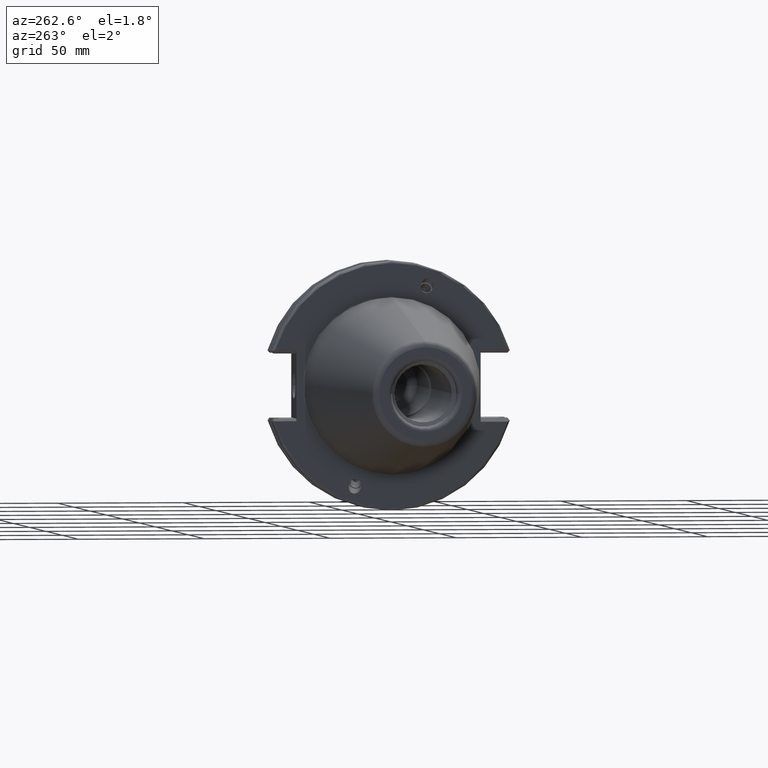
[diagram: clean part render]
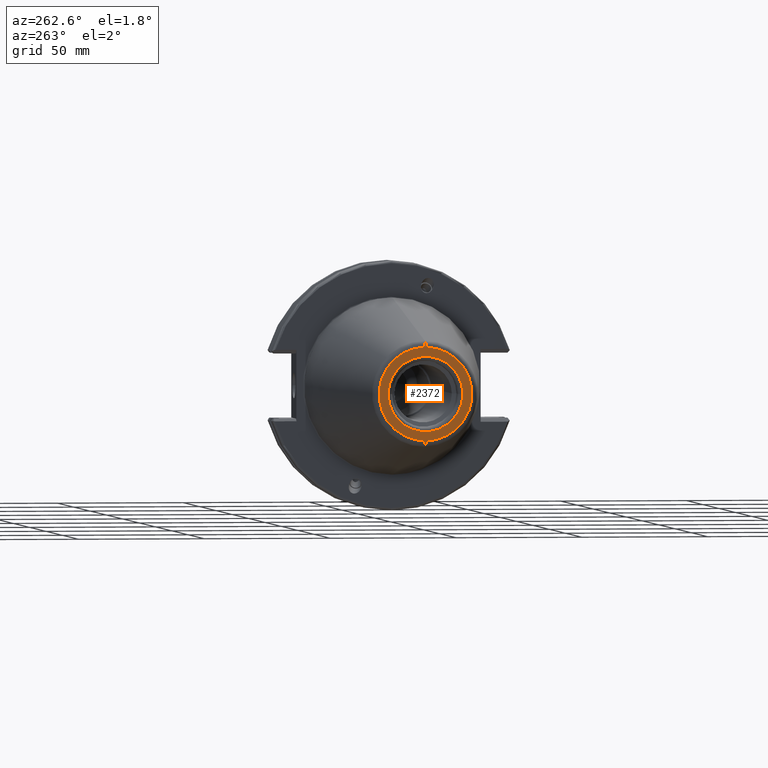
[diagram: same view with one face highlighted and labeled with its STEP entity id]
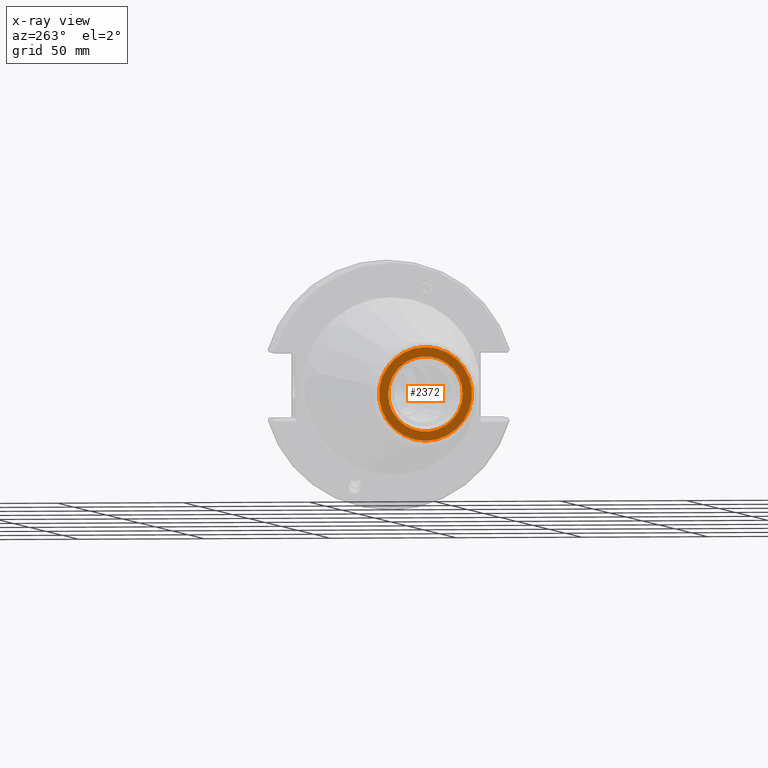
[diagram: x-ray of the same camera — body ghosted, the highlighted face saturated]
A machine part, auxiliary view. The second image highlights one B-rep face of the part: STEP entity #2372.
The next image is the same camera in x-ray: the body ghosted, the highlighted face saturated — about 0% of this face is hidden behind the body in this view.
In plain terms, the highlighted planar face has unit normal (1, 0, 0).
Its self-contained STEP definition (entity closure, byte-faithful):
#81=CARTESIAN_POINT('',(-4.E0,0.E0,0.E0));
#82=DIRECTION('',(-1.E0,0.E0,0.E0));
#83=DIRECTION('',(0.E0,0.E0,-1.E0));
#84=AXIS2_PLACEMENT_3D('',#81,#82,#83);
#86=CARTESIAN_POINT('',(-4.E0,0.E0,0.E0));
#87=DIRECTION('',(-1.E0,0.E0,0.E0));
#88=DIRECTION('',(0.E0,0.E0,1.E0));
#89=AXIS2_PLACEMENT_3D('',#86,#87,#88);
#91=CARTESIAN_POINT('',(-4.E0,0.E0,0.E0));
#92=DIRECTION('',(1.E0,0.E0,0.E0));
#93=DIRECTION('',(0.E0,1.E0,-7.607143345760E-8));
#94=AXIS2_PLACEMENT_3D('',#91,#92,#93);
#96=CARTESIAN_POINT('',(-4.E0,0.E0,0.E0));
#97=DIRECTION('',(1.E0,0.E0,0.E0));
#98=DIRECTION('',(0.E0,-1.E0,7.607143271544E-8));
#99=AXIS2_PLACEMENT_3D('',#96,#97,#98);
#1948=CARTESIAN_POINT('',(-4.E0,5.836909766759E-1,-4.440220929201E-8));
#1949=CARTESIAN_POINT('',(-4.E0,-5.836909766759E-1,4.440220962270E-8));
#1950=VERTEX_POINT('',#1948);
#1951=VERTEX_POINT('',#1949);
#1956=CARTESIAN_POINT('',(-4.E0,0.E0,-7.272769429014E-1));
#1957=CARTESIAN_POINT('',(-4.E0,0.E0,7.272769429014E-1));
#1958=VERTEX_POINT('',#1956);
#1959=VERTEX_POINT('',#1957);
#2356=CARTESIAN_POINT('',(-4.E0,0.E0,0.E0));
#2357=DIRECTION('',(1.E0,0.E0,0.E0));
#2358=DIRECTION('',(0.E0,0.E0,1.E0));
#2359=AXIS2_PLACEMENT_3D('',#2356,#2357,#2358);
#2360=PLANE('',#2359);
#2361=ORIENTED_EDGE('',*,*,#2346,.F.);
#2363=ORIENTED_EDGE('',*,*,#2362,.F.);
#2364=EDGE_LOOP('',(#2361,#2363));
#2365=FACE_OUTER_BOUND('',#2364,.F.);
#2367=ORIENTED_EDGE('',*,*,#2366,.F.);
#2369=ORIENTED_EDGE('',*,*,#2368,.F.);
#2370=EDGE_LOOP('',(#2367,#2369));
#2371=FACE_BOUND('',#2370,.F.);
#2372=ADVANCED_FACE('',(#2365,#2371),#2360,.F.);
#85=CIRCLE('',#84,7.272769429014E-1);
#90=CIRCLE('',#89,7.272769429014E-1);
#95=CIRCLE('',#94,5.836909766759E-1);
#100=CIRCLE('',#99,5.836909766759E-1);
#2346=EDGE_CURVE('',#1958,#1959,#85,.T.);
#2362=EDGE_CURVE('',#1959,#1958,#90,.T.);
#2366=EDGE_CURVE('',#1950,#1951,#95,.T.);
#2368=EDGE_CURVE('',#1951,#1950,#100,.T.);